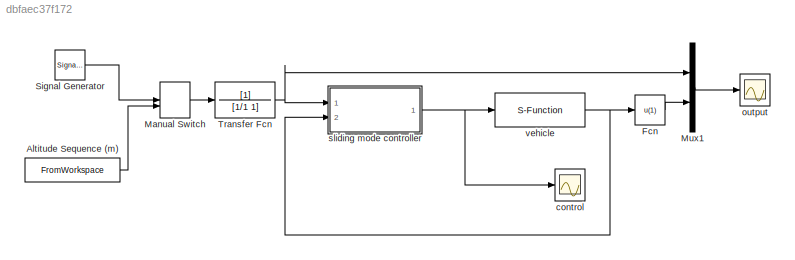
MODEL slx_dbfaec37f172
KIND model
CONFIG InitFcn = params
CONFIG StartFcn = params
BLOCK [FromWorkspace] Altitude Sequence (m)
  SampleTime = 0
  VariableName = P.altitude_sequence
  ZeroCross = on
BLOCK [Fcn] Fcn
  Expr = u(1)
BLOCK [ManualSwitch] Manual Switch
  CurrentSetting = 0
BLOCK [Mux] Mux1
  DisplayOption = bar
  Inputs = 2
  Ports = [2, 1]
BLOCK [SignalGenerator] Signal Generator
  Amplitude = 0.5
  Frequency = .1
  Ports = [0, 1]
  WaveForm = square
BLOCK [TransferFcn] Transfer Fcn
  Denominator = [1/1 1]
BLOCK [Scope] control
  DataFormat = StructureWithTime
  Floating = off
  LimitDataPoints = off
  NumInputPorts = 1
  Ports = [1]
  SaveName = ScopeData1
  ShowLegends = off
  YMax = 50
  YMin = -25
BLOCK [Scope] output
  DataFormat = StructureWithTime
  Floating = off
  LimitDataPoints = off
  NumInputPorts = 1
  Ports = [1]
  ShowLegends = off
  YMax = 0.8
  YMin = 0
  ZoomMode = yonly
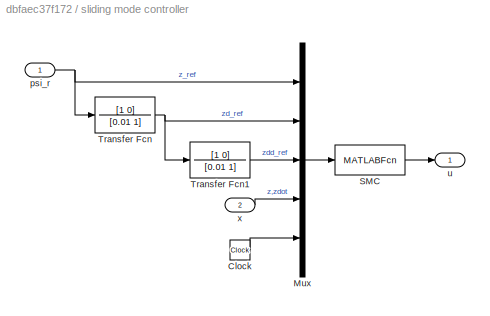
BLOCK [SubSystem] sliding mode controller
  FunctionWithSeparateData = off
  MaskHideContents = off
  MinAlgLoopOccurrences = off
  Opaque = off
  Ports = [2, 1]
  PropExecContextOutsideSubsystem = off
  RTWSystemCode = Auto
  RequestExecContextInheritance = off
BLOCK [Clock] sliding mode controller/Clock
BLOCK [Mux] sliding mode controller/Mux
  DisplayOption = bar
  Inputs = 5
  Ports = [5, 1]
BLOCK [MATLABFcn] sliding mode controller/SMC
  MATLABFcn = SM_controller(u,P)
  Ports = [1, 1]
  SampleTime = P.Ts
BLOCK [TransferFcn] sliding mode controller/Transfer Fcn
  Denominator = [0.01 1]
  Numerator = [1 0]
BLOCK [TransferFcn] sliding mode controller/Transfer Fcn1
  Denominator = [0.01 1]
  Numerator = [1 0]
BLOCK [Inport] sliding mode controller/psi_r
  IconDisplay = Port number
BLOCK [Outport] sliding mode controller/u
  IconDisplay = Port number
BLOCK [Inport] sliding mode controller/x
  IconDisplay = Port number
  Port = 2
BLOCK [S-Function] vehicle
  EnableBusSupport = off
  FunctionName = helicopter
  Parameters = P
  Ports = [1, 1]
LINE Altitude Sequence (m):1 -> Manual Switch:2
LINE Fcn:1 -> Mux1:2
LINE Manual Switch:1 -> Transfer Fcn:1
LINE Mux1:1 -> output:1
LINE Signal Generator:1 -> Manual Switch:1
NET Transfer Fcn:1 -> Mux1:1, sliding mode controller:1
LINE sliding mode controller/Clock:1 -> sliding mode controller/Mux:5
LINE sliding mode controller/Mux:1 -> sliding mode controller/SMC:1
LINE sliding mode controller/SMC:1 -> sliding mode controller/u:1
LINE sliding mode controller/Transfer Fcn1:1 -> sliding mode controller/Mux:3
NET sliding mode controller/Transfer Fcn:1 -> sliding mode controller/Mux:2, sliding mode controller/Transfer Fcn1:1
NET sliding mode controller/psi_r:1 -> sliding mode controller/Mux:1, sliding mode controller/Transfer Fcn:1
LINE sliding mode controller/x:1 -> sliding mode controller/Mux:4
NET sliding mode controller:1 -> control:1, vehicle:1
NET vehicle:1 -> Fcn:1, sliding mode controller:2
note: NET lines group one-source signal fan-out (src -> all destinations, sorted); 1:1 wires keep LINE
